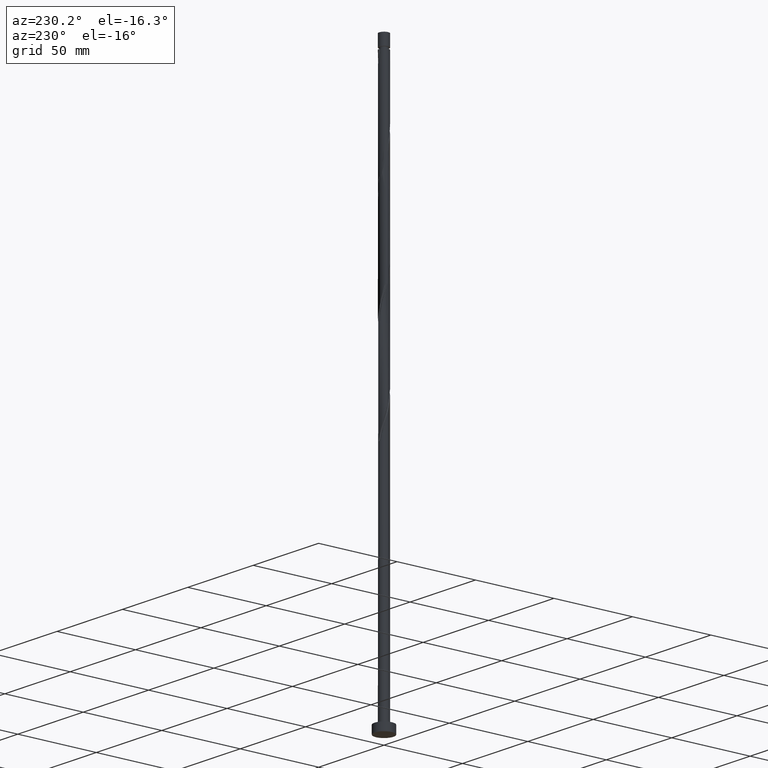
[diagram: clean part render]
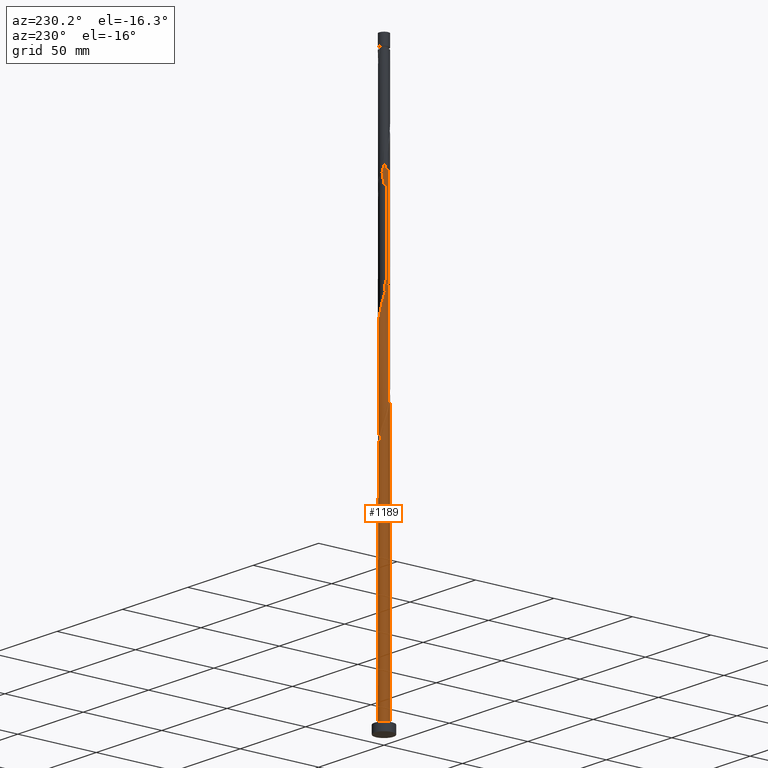
[diagram: same view with one face highlighted and labeled with its STEP entity id]
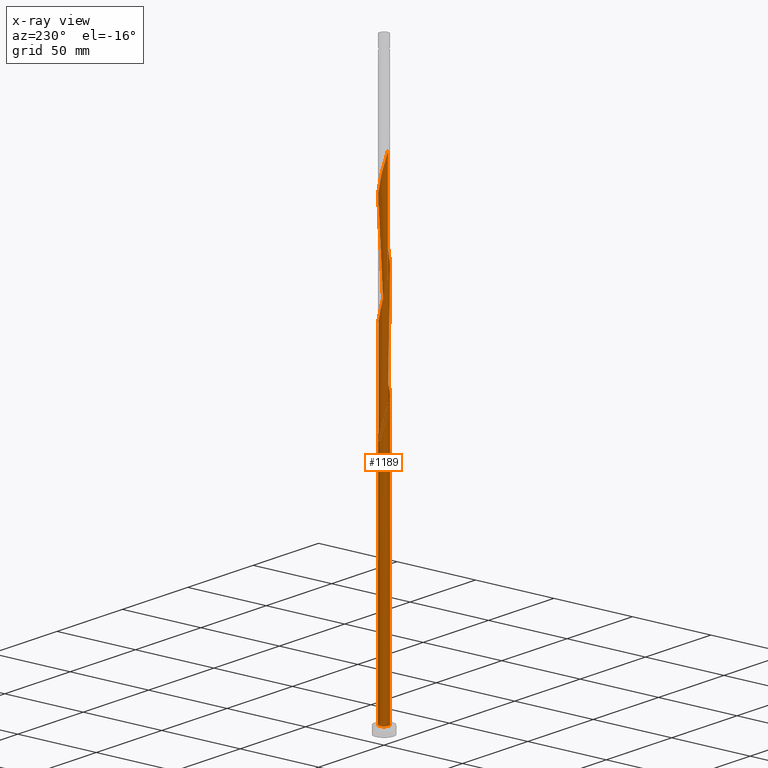
[diagram: x-ray of the same camera — body ghosted, the highlighted face saturated]
A machine part, auxiliary view. The second image highlights one B-rep face of the part: STEP entity #1189.
The next image is the same camera in x-ray: the body ghosted, the highlighted face saturated — about 0% of this face is hidden behind the body in this view.
In plain terms, the highlighted cylindrical surface (bore or boss wall) has radius 3 mm, axis along (-0, -0, -1).
Its self-contained STEP definition (entity closure, byte-faithful):
#17 = CARTESIAN_POINT ( 'NONE',  ( -1.245111594254574738, -2.729413328510883918, 175.9047530205320982 ) ) ;
#31 = CARTESIAN_POINT ( 'NONE',  ( 2.986297077045554360, 0.2864083930844358306, 198.1269752427542699 ) ) ;
#66 = CARTESIAN_POINT ( 'NONE',  ( -0.9059989139450631557, 2.877253563794377023, 217.0158641316432124 ) ) ;
#70 = CARTESIAN_POINT ( 'NONE',  ( -2.944774136347772409, 0.6540087066196524912, 161.4603085760876411 ) ) ;
#73 = CARTESIAN_POINT ( 'NONE',  ( -1.195207115623886818, 2.751632233922633564, 151.4603085760876979 ) ) ;
#84 = CARTESIAN_POINT ( 'NONE',  ( 0.02731362638454194400, 2.999875658392153976, 213.6825307983098696 ) ) ;
#87 = CARTESIAN_POINT ( 'NONE',  ( -2.456461689585820896, 1.750776419202127121, 161.4603085760876979 ) ) ;
#91 = CARTESIAN_POINT ( 'NONE',  ( -3.000000000000005329, -2.212365482258404366E-15, 163.7793097770106385 ) ) ;
#93 = CARTESIAN_POINT ( 'NONE',  ( -3.000000000000000888, 3.602568116380264432E-15, 168.0301962640535862 ) ) ;
#98 = CARTESIAN_POINT ( 'NONE',  ( 2.844610918258240417, -0.9529893618115796716, 260.3491974649765552 ) ) ;
#101 = CARTESIAN_POINT ( 'NONE',  ( -2.861491667719898047, 0.9010357570982411302, 164.7936419094209839 ) ) ;
#105 = CARTESIAN_POINT ( 'NONE',  ( 1.997955648279248875, -2.259998966802002851, 254.7936419094209555 ) ) ;
#116 = CARTESIAN_POINT ( 'NONE',  ( 0.000000000000000000, 0.000000000000000000, 5.000000000000000000 ) ) ;
#165 = CARTESIAN_POINT ( 'NONE',  ( -2.861491667719903820, -0.9010357570982413522, 167.0158641316432124 ) ) ;
#183 = CARTESIAN_POINT ( 'NONE',  ( -0.6504259784947300504, -2.928642355512056206, 178.1269752427543267 ) ) ;
#189 = CARTESIAN_POINT ( 'NONE',  ( -1.741185482790979844, 2.443004935426446700, 153.6825307983098696 ) ) ;
#192 = CARTESIAN_POINT ( 'NONE',  ( -2.211065689225173436, 2.027606598413814520, 222.5714196871987838 ) ) ;
#204 = CARTESIAN_POINT ( 'NONE',  ( 0.9582386936374949205, 2.860279830445437543, 210.3491974649765552 ) ) ;
#211 = ORIENTED_EDGE ( 'NONE', *, *, #1018, .T. ) ;
#215 = CARTESIAN_POINT ( 'NONE',  ( -2.247618455994267350, -1.987010638188426048, 238.1269752427543551 ) ) ;
#222 = CARTESIAN_POINT ( 'NONE',  ( -3.000000000000000444, 0.000000000000000000, 5.000000000000000000 ) ) ;
#236 = AXIS2_PLACEMENT_3D ( 'NONE', #1279, #549, #1655 ) ;
#237 = CARTESIAN_POINT ( 'NONE',  ( -1.531984494871655667, -2.598546826576330293, 241.4603085760876127 ) ) ;
#240 = CARTESIAN_POINT ( 'NONE',  ( 0.000000000000000000, 0.000000000000000000, 149.2380863538654410 ) ) ;
#241 = EDGE_CURVE ( 'NONE', #1623, #462, #662, .T. ) ;
#246 = CARTESIAN_POINT ( 'NONE',  ( -2.744447700168709314, 1.251970017003504632, 292.5714196871987838 ) ) ;
#252 = EDGE_CURVE ( 'NONE', #427, #785, #1699, .T. ) ;
#256 = CARTESIAN_POINT ( 'NONE',  ( -2.424175730171096443, 1.795214230025627300, 290.3491974649765552 ) ) ;
#268 = CARTESIAN_POINT ( 'NONE',  ( -3.000000000000004885, 0.1709212123392973570, 296.5070518009593457 ) ) ;
#279 = CARTESIAN_POINT ( 'NONE',  ( 2.247618455994268238, 1.987010638188425382, 271.4603085760876979 ) ) ;
#280 = EDGE_LOOP ( 'NONE', ( #1063, #656, #911, #211, #1825, #712, #1601, #640, #424 ) ) ;
#287 = CARTESIAN_POINT ( 'NONE',  ( 2.986297077045554360, 0.2864083930844358306, 264.7936419094210123 ) ) ;
#296 = AXIS2_PLACEMENT_3D ( 'NONE', #721, #1858, #862 ) ;
#302 = LINE ( 'NONE', #1738, #759 ) ;
#309 = CARTESIAN_POINT ( 'NONE',  ( -2.986297077045553916, -0.2864083930844374959, 164.7936419094210123 ) ) ;
#319 = CARTESIAN_POINT ( 'NONE',  ( 1.484415317302710147, -2.626010904050890105, 185.9047530205320697 ) ) ;
#325 = CARTESIAN_POINT ( 'NONE',  ( 2.766788993523063400, 1.201790650553044681, 201.4603085760876127 ) ) ;
#336 = CARTESIAN_POINT ( 'NONE',  ( -3.000000000000005329, -2.212365482258403972E-15, 163.7793097770106385 ) ) ;
#337 = CARTESIAN_POINT ( 'NONE',  ( -2.956194341916742463, -0.6002808636434358025, 165.9047530205320129 ) ) ;
#362 = CARTESIAN_POINT ( 'NONE',  ( -2.944774136347772409, 0.6540087066196524912, 228.1269752427543267 ) ) ;
#373 = CARTESIAN_POINT ( 'NONE',  ( -2.247618455994262909, 1.987010638188424494, 160.3491974649765268 ) ) ;
#387 = CARTESIAN_POINT ( 'NONE',  ( -1.741185482790979844, 2.443004935426446700, 287.0158641316432409 ) ) ;
#391 = DIRECTION ( 'NONE',  ( 0.000000000000000000, -0.000000000000000000, -1.000000000000000000 ) ) ;
#396 = CARTESIAN_POINT ( 'NONE',  ( 1.195207115623885930, -2.751632233922634008, 251.4603085760876411 ) ) ;
#399 = CARTESIAN_POINT ( 'NONE',  ( -1.531984494871652558, 2.598546826576327184, 157.0158641316432693 ) ) ;
#404 = CARTESIAN_POINT ( 'NONE',  ( 1.531984494871657887, 2.598546826576328517, 274.7936419094209555 ) ) ;
#415 = CARTESIAN_POINT ( 'NONE',  ( 2.956194341916742463, 0.6002808636434353584, 265.9047530205320982 ) ) ;
#421 = DIRECTION ( 'NONE',  ( -0.000000000000000000, -0.000000000000000000, -1.000000000000000000 ) ) ;
#424 = ORIENTED_EDGE ( 'NONE', *, *, #1800, .F. ) ;
#427 = VERTEX_POINT ( 'NONE', #1003 ) ;
#436 = CARTESIAN_POINT ( 'NONE',  ( 2.424175730171095999, -1.795214230025627966, 190.3491974649766121 ) ) ;
#456 = CARTESIAN_POINT ( 'NONE',  ( 0.9059989139450623785, -2.877253563794377911, 183.6825307983098412 ) ) ;
#462 = VERTEX_POINT ( 'NONE', #1125 ) ;
#464 = CARTESIAN_POINT ( 'NONE',  ( -2.456461689585825336, -1.750776419202128675, 170.3491974649765837 ) ) ;
#471 = CARTESIAN_POINT ( 'NONE',  ( -2.424175730171096443, 1.795214230025627300, 157.0158641316431840 ) ) ;
#475 = CARTESIAN_POINT ( 'NONE',  ( -2.766788993523062512, -1.201790650553046236, 168.1269752427543267 ) ) ;
#483 = CARTESIAN_POINT ( 'NONE',  ( -2.584311715169903767, 1.523592123514565522, 158.1269752427543551 ) ) ;
#494 = CARTESIAN_POINT ( 'NONE',  ( -2.844610918258240417, 0.9529893618115783394, 227.0158641316432124 ) ) ;
#508 = VECTOR ( 'NONE', #1430, 1000.000000000000000 ) ;
#513 = CARTESIAN_POINT ( 'NONE',  ( -1.484415317302710147, 2.626010904050890105, 152.5714196871987554 ) ) ;
#518 = CARTESIAN_POINT ( 'NONE',  ( 2.038775222402709364, 2.223244857174723865, 205.9047530205321266 ) ) ;
#527 = CARTESIAN_POINT ( 'NONE',  ( -0.9582386936374943653, -2.860279830445437987, 243.6825307983098696 ) ) ;
#529 =( BOUNDED_CURVE ( )  B_SPLINE_CURVE ( 2, ( #93, #1848, #664, #828, #101, #962, #1691, #87, #373, #551, #673, #399, #1553, #1255, #531, #1840, #1120, #1544, #560 ),
 .UNSPECIFIED., .F., .T. ) 
 B_SPLINE_CURVE_WITH_KNOTS ( ( 3, 2, 2, 2, 2, 2, 2, 2, 2, 3 ),
 ( 0.9295286012773116280, 0.9333333333333333481, 0.9416666666666666519, 0.9499999999999999556, 0.9583333333333333703, 0.9666666666666666741, 0.9749999999999999778, 0.9833333333333332815, 0.9916666666666666963, 1.000000000000000000 ),
 .UNSPECIFIED. ) 
 CURVE ( )  GEOMETRIC_REPRESENTATION_ITEM ( )  RATIONAL_B_SPLINE_CURVE ( ( 0.9066196499552394705, 0.9068171577856523058, 0.9090909090909511381, 0.9041108139711994118, 0.9090909090909511381, 0.9041108139711994118, 0.9090909090909511381, 0.9041108139711994118, 0.9090909090909511381, 0.9041108139711994118, 0.9090909090909511381, 0.9041108139711994118, 0.9090909090909511381, 0.9041108139711994118, 0.9090909090909511381, 0.9041108139711994118, 0.9090909090909511381, 0.9041108139711994118, 0.9090909090909511381 ) ) 
 REPRESENTATION_ITEM ( '' )  );
#531 = CARTESIAN_POINT ( 'NONE',  ( -0.6504259784947276080, 2.928642355512051765, 153.6825307983098696 ) ) ;
#536 = CARTESIAN_POINT ( 'NONE',  ( -1.195207115623886818, 2.751632233922633564, 284.7936419094210123 ) ) ;
#537 = CARTESIAN_POINT ( 'NONE',  ( -3.000000000000006217, 0.1709212123392934990, 163.1737184676260597 ) ) ;
#548 = CARTESIAN_POINT ( 'NONE',  ( 2.456461689585826225, 1.750776419202127343, 270.3491974649764984 ) ) ;
#549 = DIRECTION ( 'NONE',  ( -0.000000000000000000, -0.000000000000000000, -1.000000000000000000 ) ) ;
#551 = CARTESIAN_POINT ( 'NONE',  ( -2.038775222402705367, 2.223244857174722089, 159.2380863538654410 ) ) ;
#558 = CARTESIAN_POINT ( 'NONE',  ( 1.484415317302710147, -2.626010904050890105, 252.5714196871987554 ) ) ;
#560 = CARTESIAN_POINT ( 'NONE',  ( 0.5969924622639742884, 2.940000000000000391, 149.2380863538654410 ) ) ;
#577 = CARTESIAN_POINT ( 'NONE',  ( 0.6504259784947317158, 2.928642355512055762, 278.1269752427543835 ) ) ;
#595 = CARTESIAN_POINT ( 'NONE',  ( -2.038775222402708920, -2.223244857174723865, 172.5714196871987838 ) ) ;
#603 = CARTESIAN_POINT ( 'NONE',  ( 1.195207115623885930, -2.751632233922634008, 184.7936419094209555 ) ) ;
#617 = CARTESIAN_POINT ( 'NONE',  ( -0.02731362638454152419, -2.999875658392153532, 180.3491974649765552 ) ) ;
#640 = ORIENTED_EDGE ( 'NONE', *, *, #1864, .T. ) ;
#647 = CARTESIAN_POINT ( 'NONE',  ( -1.195207115623886818, 2.751632233922633564, 218.1269752427543267 ) ) ;
#656 = ORIENTED_EDGE ( 'NONE', *, *, #241, .F. ) ;
#659 = CARTESIAN_POINT ( 'NONE',  ( 1.245111594254575182, 2.729413328510883918, 209.2380863538654410 ) ) ;
#662 =( BOUNDED_CURVE ( )  B_SPLINE_CURVE ( 2, ( #749, #1184, #309, #337, #165, #475, #1174, #464, #1318, #595, #919, #768, #17, #1503, #183, #1476, #617, #1326, #1206, #456, #603, #319, #1640, #1764, #1487, #436, #758, #1030, #1785, #1193, #1334, #1056, #31, #1773, #1631, #325, #778, #1604, #1376, #518, #1512, #1539, #659, #204, #1218, #950, #84, #816, #1678, #66, #647, #670, #1091, #929, #192, #1798, #1082, #1667, #494, #362, #939, #968, #1837, #789, #1530, #1395, #1365, #1227, #215, #1657, #807, #237, #1385, #527, #1687, #825, #1708, #1424, #1270, #1594, #396, #558, #1568, #105, #1127, #1733, #998, #1299, #98, #1288, #1118, #688, #287, #415, #841, #1409, #679, #548, #279, #989, #715, #404, #1884, #1135, #577, #1698, #697, #1262, #833, #1846, #536, #1433, #387, #1874, #1278, #256, #1863, #246, #979, #1559, #1577, #268, #854 ),
 .UNSPECIFIED., .F., .T. ) 
 B_SPLINE_CURVE_WITH_KNOTS ( ( 3, 2, 2, 2, 2, 2, 2, 2, 2, 2, 2, 2, 2, 2, 2, 2, 2, 2, 2, 2, 2, 2, 2, 2, 2, 2, 2, 2, 2, 2, 2, 2, 2, 2, 2, 2, 2, 2, 2, 2, 2, 2, 2, 2, 2, 2, 2, 2, 2, 2, 2, 2, 2, 2, 2, 2, 2, 2, 2, 2, 2, 3 ),
 ( 0.05452860127731162104, 0.05833333333333334814, 0.06666666666666665186, 0.07499999999999995559, 0.08333333333333337034, 0.09166666666666667407, 0.09999999999999997780, 0.1083333333333332815, 0.1166666666666666963, 0.1250000000000000000, 0.1333333333333333037, 0.1416666666666667185, 0.1500000000000000222, 0.1583333333333333259, 0.1666666666666666297, 0.1750000000000000444, 0.1833333333333333481, 0.1916666666666666519, 0.1999999999999999556, 0.2083333333333333703, 0.2166666666666666741, 0.2249999999999999778, 0.2333333333333332815, 0.2416666666666666963, 0.2500000000000000000, 0.2583333333333333037, 0.2666666666666667185, 0.2750000000000000222, 0.2833333333333333259, 0.2916666666666666297, 0.3000000000000000444, 0.3083333333333333481, 0.3166666666666666519, 0.3249999999999999556, 0.3333333333333333703, 0.3416666666666666741, 0.3499999999999999778, 0.3583333333333332815, 0.3666666666666666963, 0.3750000000000000000, 0.3833333333333333037, 0.3916666666666667185, 0.4000000000000000222, 0.4083333333333333259, 0.4166666666666666297, 0.4250000000000000444, 0.4333333333333333481, 0.4416666666666666519, 0.4499999999999999556, 0.4583333333333333703, 0.4666666666666666741, 0.4749999999999999778, 0.4833333333333332815, 0.4916666666666666963, 0.5000000000000000000, 0.5083333333333333037, 0.5166666666666666075, 0.5250000000000000222, 0.5333333333333333259, 0.5416666666666667407, 0.5500000000000000444, 0.5545286012773115170 ),
 .UNSPECIFIED. ) 
 CURVE ( )  GEOMETRIC_REPRESENTATION_ITEM ( )  RATIONAL_B_SPLINE_CURVE ( ( 0.9066196499552459098, 0.9068171577856587451, 0.9090909090909575774, 0.9041108139712058511, 0.9090909090909575774, 0.9041108139712058511, 0.9090909090909575774, 0.9041108139712058511, 0.9090909090909575774, 0.9041108139712058511, 0.9090909090909575774, 0.9041108139712058511, 0.9090909090909575774, 0.9041108139712058511, 0.9090909090909575774, 0.9041108139712058511, 0.9090909090909575774, 0.9041108139712058511, 0.9090909090909575774, 0.9041108139712058511, 0.9090909090909575774, 0.9041108139712058511, 0.9090909090909575774, 0.9041108139712058511, 0.9090909090909575774, 0.9041108139712058511, 0.9090909090909575774, 0.9041108139712058511, 0.9090909090909575774, 0.9041108139712058511, 0.9090909090909575774, 0.9041108139712058511, 0.9090909090909575774, 0.9041108139712058511, 0.9090909090909575774, 0.9041108139712058511, 0.9090909090909575774, 0.9041108139712058511, 0.9090909090909575774, 0.9041108139712058511, 0.9090909090909575774, 0.9041108139712058511, 0.9090909090909575774, 0.9041108139712058511, 0.9090909090909575774, 0.9041108139712058511, 0.9090909090909575774, 0.9041108139712058511, 0.9090909090909575774, 0.9041108139712058511, 0.9090909090909575774, 0.9041108139712058511, 0.9090909090909575774, 0.9041108139712058511, 0.9090909090909575774, 0.9041108139712058511, 0.9090909090909575774, 0.9041108139712058511, 0.9090909090909575774, 0.9041108139712058511, 0.9090909090909575774, 0.9041108139712058511, 0.9090909090909575774, 0.9041108139712058511, 0.9090909090909575774, 0.9041108139712058511, 0.9090909090909575774, 0.9041108139712058511, 0.9090909090909575774, 0.9041108139712058511, 0.9090909090909575774, 0.9041108139712058511, 0.9090909090909575774, 0.9041108139712058511, 0.9090909090909575774, 0.9041108139712058511, 0.9090909090909575774, 0.9041108139712058511, 0.9090909090909575774, 0.9041108139712058511, 0.9090909090909575774, 0.9041108139712058511, 0.9090909090909575774, 0.9041108139712058511, 0.9090909090909575774, 0.9041108139712058511, 0.9090909090909575774, 0.9041108139712058511, 0.9090909090909575774, 0.9041108139712058511, 0.9090909090909575774, 0.9041108139712058511, 0.9090909090909575774, 0.9041108139712058511, 0.9090909090909575774, 0.9041108139712058511, 0.9090909090909575774, 0.9041108139712058511, 0.9090909090909575774, 0.9041108139712058511, 0.9090909090909575774, 0.9041108139712058511, 0.9090909090909575774, 0.9041108139712058511, 0.9090909090909575774, 0.9041108139712058511, 0.9090909090909575774, 0.9041108139712058511, 0.9090909090909575774, 0.9041108139712058511, 0.9090909090909575774, 0.9041108139712058511, 0.9090909090909575774, 0.9041108139712058511, 0.9090909090909575774, 0.9041108139712058511, 0.9090909090909575774, 0.9041108139712058511, 0.9090909090909575774, 0.9041108139712058511, 0.9090909090909575774, 0.9063845652765047944, 0.9066196499552460208 ) ) 
 REPRESENTATION_ITEM ( '' )  );
#664 = CARTESIAN_POINT ( 'NONE',  ( -2.986297077045549475, 0.2864083930844386616, 167.0158641316432409 ) ) ;
#668 = CIRCLE ( 'NONE', #1122, 3.000000000000000444 ) ;
#670 = CARTESIAN_POINT ( 'NONE',  ( -1.484415317302710147, 2.626010904050890105, 219.2380863538654125 ) ) ;
#673 = CARTESIAN_POINT ( 'NONE',  ( -1.785379858637178740, 2.410895841875523526, 158.1269752427542699 ) ) ;
#679 = CARTESIAN_POINT ( 'NONE',  ( 2.611625341554444368, 1.476283534877587345, 269.2380863538654125 ) ) ;
#688 = CARTESIAN_POINT ( 'NONE',  ( 3.016399812174365813, -0.02746407747456110909, 263.6825307983098696 ) ) ;
#697 = CARTESIAN_POINT ( 'NONE',  ( 0.02731362638454194400, 2.999875658392153976, 280.3491974649765552 ) ) ;
#698 = EDGE_CURVE ( 'NONE', #462, #1777, #1108, .T. ) ;
#712 = ORIENTED_EDGE ( 'NONE', *, *, #1004, .F. ) ;
#715 = CARTESIAN_POINT ( 'NONE',  ( 1.785379858637183625, 2.410895841875526191, 273.6825307983098696 ) ) ;
#721 = CARTESIAN_POINT ( 'NONE',  ( 0.000000000000000000, 0.000000000000000000, 5.000000000000000000 ) ) ;
#749 = CARTESIAN_POINT ( 'NONE',  ( -3.000000000000005329, -2.212365482258404366E-15, 163.7793097770106385 ) ) ;
#758 = CARTESIAN_POINT ( 'NONE',  ( 2.584311715169902879, -1.523592123514566632, 191.4603085760876979 ) ) ;
#759 = VECTOR ( 'NONE', #421, 1000.000000000000000 ) ;
#768 = CARTESIAN_POINT ( 'NONE',  ( -1.531984494871655667, -2.598546826576330293, 174.7936419094209555 ) ) ;
#778 = CARTESIAN_POINT ( 'NONE',  ( 2.611625341554444368, 1.476283534877587345, 202.5714196871987554 ) ) ;
#785 = VERTEX_POINT ( 'NONE', #222 ) ;
#789 = CARTESIAN_POINT ( 'NONE',  ( -2.956194341916742463, -0.6002808636434358025, 232.5714196871987838 ) ) ;
#807 = CARTESIAN_POINT ( 'NONE',  ( -1.785379858637183181, -2.410895841875526635, 240.3491974649765268 ) ) ;
#813 = CARTESIAN_POINT ( 'NONE',  ( -1.997955648279249763, 2.259998966802002407, 154.7936419094209839 ) ) ;
#816 = CARTESIAN_POINT ( 'NONE',  ( -0.2879860105828822570, 3.002746436205633529, 214.7936419094209839 ) ) ;
#818 = EDGE_CURVE ( 'NONE', #1894, #1623, #846, .T. ) ;
#825 = CARTESIAN_POINT ( 'NONE',  ( -0.3426132633519656800, -2.997004880578673980, 245.9047530205320697 ) ) ;
#828 = CARTESIAN_POINT ( 'NONE',  ( -2.956194341916738466, 0.6002808636434358025, 165.9047530205321266 ) ) ;
#833 = CARTESIAN_POINT ( 'NONE',  ( -0.5969924622639734002, 2.940000000000005720, 282.5714196871986701 ) ) ;
#841 = CARTESIAN_POINT ( 'NONE',  ( 2.861491667719903820, 0.9010357570982401310, 267.0158641316432409 ) ) ;
#846 =( BOUNDED_CURVE ( )  B_SPLINE_CURVE ( 2, ( #947, #1794, #73, #513, #189, #813, #1203, #471, #483, #925, #1361, #70, #1396, #537, #91 ),
 .UNSPECIFIED., .F., .T. ) 
 B_SPLINE_CURVE_WITH_KNOTS ( ( 3, 2, 2, 2, 2, 2, 2, 3 ),
 ( 0.000000000000000000, 0.008333333333333303727, 0.01666666666666671848, 0.02500000000000002220, 0.03333333333333332593, 0.04166666666666662966, 0.05000000000000004441, 0.05452860127731162104 ),
 .UNSPECIFIED. ) 
 CURVE ( )  GEOMETRIC_REPRESENTATION_ITEM ( )  RATIONAL_B_SPLINE_CURVE ( ( 0.9090909090909575774, 0.9041108139712058511, 0.9090909090909575774, 0.9041108139712058511, 0.9090909090909575774, 0.9041108139712058511, 0.9090909090909575774, 0.9041108139712058511, 0.9090909090909575774, 0.9041108139712058511, 0.9090909090909575774, 0.9041108139712058511, 0.9090909090909575774, 0.9063845652765045724, 0.9066196499552459098 ) ) 
 REPRESENTATION_ITEM ( '' )  );
#850 = CARTESIAN_POINT ( 'NONE',  ( -3.000000000000000444, 0.000000000000000000, 357.7000000000000455 ) ) ;
#854 = CARTESIAN_POINT ( 'NONE',  ( -3.000000000000005329, 5.979366168265956448E-17, 297.1126431103439245 ) ) ;
#862 = DIRECTION ( 'NONE',  ( 1.000000000000000000, 0.000000000000000000, 0.000000000000000000 ) ) ;
#911 = ORIENTED_EDGE ( 'NONE', *, *, #1004, .T. ) ;
#919 = CARTESIAN_POINT ( 'NONE',  ( -1.785379858637183181, -2.410895841875526635, 173.6825307983098980 ) ) ;
#925 = CARTESIAN_POINT ( 'NONE',  ( -2.744447700168709314, 1.251970017003504632, 159.2380863538653841 ) ) ;
#928 = CARTESIAN_POINT ( 'NONE',  ( 0.5969924622639743994, 2.940000000000000391, 149.2380863538654410 ) ) ;
#929 = CARTESIAN_POINT ( 'NONE',  ( -1.997955648279249763, 2.259998966802002407, 221.4603085760876979 ) ) ;
#939 = CARTESIAN_POINT ( 'NONE',  ( -2.980586974261068445, 0.3407363920471058183, 229.2380863538654410 ) ) ;
#947 = CARTESIAN_POINT ( 'NONE',  ( -0.5969924622639734002, 2.940000000000005720, 149.2380863538654410 ) ) ;
#950 = CARTESIAN_POINT ( 'NONE',  ( 0.3426132633519660686, 2.997004880578673980, 212.5714196871988122 ) ) ;
#962 = CARTESIAN_POINT ( 'NONE',  ( -2.766788993523058071, 1.201790650553046014, 163.6825307983098696 ) ) ;
#968 = CARTESIAN_POINT ( 'NONE',  ( -3.016399812174365369, 0.02746407747456014459, 230.3491974649765837 ) ) ;
#979 = CARTESIAN_POINT ( 'NONE',  ( -2.844610918258240417, 0.9529893618115783394, 293.6825307983098696 ) ) ;
#989 = CARTESIAN_POINT ( 'NONE',  ( 2.038775222402709364, 2.223244857174723865, 272.5714196871987269 ) ) ;
#998 = CARTESIAN_POINT ( 'NONE',  ( 2.584311715169902879, -1.523592123514566632, 258.1269752427542699 ) ) ;
#1003 = CARTESIAN_POINT ( 'NONE',  ( 3.000000000000000444, 0.000000000000000000, 5.000000000000000000 ) ) ;
#1004 = EDGE_CURVE ( 'NONE', #1623, #785, #302, .T. ) ;
#1005 = AXIS2_PLACEMENT_3D ( 'NONE', #116, #1144, #1723 ) ;
#1018 = EDGE_CURVE ( 'NONE', #785, #427, #1887, .T. ) ;
#1030 = CARTESIAN_POINT ( 'NONE',  ( 2.744447700168709314, -1.251970017003504632, 192.5714196871987554 ) ) ;
#1056 = CARTESIAN_POINT ( 'NONE',  ( 3.016399812174365813, -0.02746407747456110909, 197.0158641316431840 ) ) ;
#1063 = ORIENTED_EDGE ( 'NONE', *, *, #698, .F. ) ;
#1082 = CARTESIAN_POINT ( 'NONE',  ( -2.584311715169903767, 1.523592123514565522, 224.7936419094209839 ) ) ;
#1091 = CARTESIAN_POINT ( 'NONE',  ( -1.741185482790979844, 2.443004935426446700, 220.3491974649765268 ) ) ;
#1108 = LINE ( 'NONE', #850, #508 ) ;
#1118 = CARTESIAN_POINT ( 'NONE',  ( 2.980586974261068445, -0.3407363920471063179, 262.5714196871987838 ) ) ;
#1120 = CARTESIAN_POINT ( 'NONE',  ( -0.02731362638453963335, 2.999875658392149536, 151.4603085760876979 ) ) ;
#1122 = AXIS2_PLACEMENT_3D ( 'NONE', #240, #391, #1129 ) ;
#1125 = CARTESIAN_POINT ( 'NONE',  ( -3.000000000000005329, 5.979366168265956448E-17, 297.1126431103439245 ) ) ;
#1127 = CARTESIAN_POINT ( 'NONE',  ( 2.211065689225173436, -2.027606598413814520, 255.9047530205321834 ) ) ;
#1129 = DIRECTION ( 'NONE',  ( -1.000000000000000000, 0.000000000000000000, 0.000000000000000000 ) ) ;
#1135 = CARTESIAN_POINT ( 'NONE',  ( 0.9582386936374949205, 2.860279830445437543, 277.0158641316431840 ) ) ;
#1144 = DIRECTION ( 'NONE',  ( 0.000000000000000000, 0.000000000000000000, 1.000000000000000000 ) ) ;
#1174 = CARTESIAN_POINT ( 'NONE',  ( -2.611625341554444368, -1.476283534877587789, 169.2380863538654125 ) ) ;
#1184 = CARTESIAN_POINT ( 'NONE',  ( -3.000000000000005329, -0.1435319978602533353, 164.2878583025746764 ) ) ;
#1189 = ADVANCED_FACE ( 'NONE', ( #1855 ), #1436, .T. ) ;
#1193 = CARTESIAN_POINT ( 'NONE',  ( 2.944774136347771076, -0.6540087066196543786, 194.7936419094209839 ) ) ;
#1203 = CARTESIAN_POINT ( 'NONE',  ( -2.211065689225173436, 2.027606598413814520, 155.9047530205321266 ) ) ;
#1206 = CARTESIAN_POINT ( 'NONE',  ( 0.5969924622639737333, -2.940000000000005720, 182.5714196871987554 ) ) ;
#1218 = CARTESIAN_POINT ( 'NONE',  ( 0.6504259784947317158, 2.928642355512055762, 211.4603085760876695 ) ) ;
#1227 = CARTESIAN_POINT ( 'NONE',  ( -2.456461689585825336, -1.750776419202128675, 237.0158641316431840 ) ) ;
#1255 = CARTESIAN_POINT ( 'NONE',  ( -0.9582386936374912567, 2.860279830445434435, 154.7936419094209555 ) ) ;
#1262 = CARTESIAN_POINT ( 'NONE',  ( -0.2879860105828822570, 3.002746436205633529, 281.4603085760875842 ) ) ;
#1270 = CARTESIAN_POINT ( 'NONE',  ( 0.5969924622639737333, -2.940000000000005720, 249.2380863538654125 ) ) ;
#1278 = CARTESIAN_POINT ( 'NONE',  ( -2.211065689225173436, 2.027606598413814520, 289.2380863538654125 ) ) ;
#1279 = CARTESIAN_POINT ( 'NONE',  ( 0.000000000000000000, 0.000000000000000000, 357.7000000000000455 ) ) ;
#1288 = CARTESIAN_POINT ( 'NONE',  ( 2.944774136347771076, -0.6540087066196543786, 261.4603085760876411 ) ) ;
#1299 = CARTESIAN_POINT ( 'NONE',  ( 2.744447700168709314, -1.251970017003504632, 259.2380863538654694 ) ) ;
#1318 = CARTESIAN_POINT ( 'NONE',  ( -2.247618455994267350, -1.987010638188426048, 171.4603085760876979 ) ) ;
#1325 = VERTEX_POINT ( 'NONE', #928 ) ;
#1326 = CARTESIAN_POINT ( 'NONE',  ( 0.2879860105828839223, -3.002746436205632641, 181.4603085760876127 ) ) ;
#1334 = CARTESIAN_POINT ( 'NONE',  ( 2.980586974261068445, -0.3407363920471063179, 195.9047530205321266 ) ) ;
#1361 = CARTESIAN_POINT ( 'NONE',  ( -2.844610918258240417, 0.9529893618115783394, 160.3491974649764984 ) ) ;
#1365 = CARTESIAN_POINT ( 'NONE',  ( -2.611625341554444368, -1.476283534877587789, 235.9047530205320697 ) ) ;
#1376 = CARTESIAN_POINT ( 'NONE',  ( 2.247618455994268238, 1.987010638188425382, 204.7936419094210407 ) ) ;
#1385 = CARTESIAN_POINT ( 'NONE',  ( -1.245111594254574738, -2.729413328510883918, 242.5714196871988122 ) ) ;
#1388 = CARTESIAN_POINT ( 'NONE',  ( -0.5969924622639734002, 2.940000000000005720, 149.2380863538654410 ) ) ;
#1395 = CARTESIAN_POINT ( 'NONE',  ( -2.766788993523062512, -1.201790650553046236, 234.7936419094209555 ) ) ;
#1396 = CARTESIAN_POINT ( 'NONE',  ( -2.980586974261068445, 0.3407363920471058183, 162.5714196871987554 ) ) ;
#1409 = CARTESIAN_POINT ( 'NONE',  ( 2.766788993523063400, 1.201790650553044681, 268.1269752427543267 ) ) ;
#1424 = CARTESIAN_POINT ( 'NONE',  ( 0.2879860105828839223, -3.002746436205632641, 248.1269752427542983 ) ) ;
#1430 = DIRECTION ( 'NONE',  ( -0.000000000000000000, -0.000000000000000000, -1.000000000000000000 ) ) ;
#1433 = CARTESIAN_POINT ( 'NONE',  ( -1.484415317302710147, 2.626010904050890105, 285.9047530205320982 ) ) ;
#1436 = CYLINDRICAL_SURFACE ( 'NONE', #236, 3.000000000000000444 ) ;
#1476 = CARTESIAN_POINT ( 'NONE',  ( -0.3426132633519656800, -2.997004880578673980, 179.2380863538654410 ) ) ;
#1487 = CARTESIAN_POINT ( 'NONE',  ( 2.211065689225173436, -2.027606598413814520, 189.2380863538654125 ) ) ;
#1503 = CARTESIAN_POINT ( 'NONE',  ( -0.9582386936374943653, -2.860279830445437987, 177.0158641316432124 ) ) ;
#1512 = CARTESIAN_POINT ( 'NONE',  ( 1.785379858637183625, 2.410895841875526191, 207.0158641316432409 ) ) ;
#1530 = CARTESIAN_POINT ( 'NONE',  ( -2.861491667719903820, -0.9010357570982413522, 233.6825307983098696 ) ) ;
#1539 = CARTESIAN_POINT ( 'NONE',  ( 1.531984494871657887, 2.598546826576328517, 208.1269752427542699 ) ) ;
#1544 = CARTESIAN_POINT ( 'NONE',  ( 0.2879860105828847550, 3.002746436205628200, 150.3491974649765837 ) ) ;
#1553 = CARTESIAN_POINT ( 'NONE',  ( -1.245111594254571630, 2.729413328510879921, 155.9047530205320697 ) ) ;
#1559 = CARTESIAN_POINT ( 'NONE',  ( -2.944774136347772409, 0.6540087066196524912, 294.7936419094208986 ) ) ;
#1568 = CARTESIAN_POINT ( 'NONE',  ( 1.741185482790979178, -2.443004935426447144, 253.6825307983098128 ) ) ;
#1577 = CARTESIAN_POINT ( 'NONE',  ( -2.980586974261068445, 0.3407363920471058183, 295.9047530205320982 ) ) ;
#1594 = CARTESIAN_POINT ( 'NONE',  ( 0.9059989139450623785, -2.877253563794377911, 250.3491974649765268 ) ) ;
#1601 = ORIENTED_EDGE ( 'NONE', *, *, #818, .F. ) ;
#1604 = CARTESIAN_POINT ( 'NONE',  ( 2.456461689585826225, 1.750776419202127343, 203.6825307983098128 ) ) ;
#1623 = VERTEX_POINT ( 'NONE', #336 ) ;
#1631 = CARTESIAN_POINT ( 'NONE',  ( 2.861491667719903820, 0.9010357570982401310, 200.3491974649765552 ) ) ;
#1640 = CARTESIAN_POINT ( 'NONE',  ( 1.741185482790979178, -2.443004935426447144, 187.0158641316432693 ) ) ;
#1655 = DIRECTION ( 'NONE',  ( -1.000000000000000000, 0.000000000000000000, 0.000000000000000000 ) ) ;
#1657 = CARTESIAN_POINT ( 'NONE',  ( -2.038775222402708920, -2.223244857174723865, 239.2380863538654125 ) ) ;
#1667 = CARTESIAN_POINT ( 'NONE',  ( -2.744447700168709314, 1.251970017003504632, 225.9047530205320413 ) ) ;
#1678 = CARTESIAN_POINT ( 'NONE',  ( -0.5969924622639734002, 2.940000000000005720, 215.9047530205321550 ) ) ;
#1687 = CARTESIAN_POINT ( 'NONE',  ( -0.6504259784947300504, -2.928642355512056206, 244.7936419094209839 ) ) ;
#1691 = CARTESIAN_POINT ( 'NONE',  ( -2.611625341554439483, 1.476283534877586678, 162.5714196871987554 ) ) ;
#1698 = CARTESIAN_POINT ( 'NONE',  ( 0.3426132633519660686, 2.997004880578673980, 279.2380863538654694 ) ) ;
#1699 = CIRCLE ( 'NONE', #1005, 3.000000000000000444 ) ;
#1708 = CARTESIAN_POINT ( 'NONE',  ( -0.02731362638454152419, -2.999875658392153532, 247.0158641316432124 ) ) ;
#1723 = DIRECTION ( 'NONE',  ( 1.000000000000000000, 0.000000000000000000, 0.000000000000000000 ) ) ;
#1733 = CARTESIAN_POINT ( 'NONE',  ( 2.424175730171095999, -1.795214230025627966, 257.0158641316432409 ) ) ;
#1738 = CARTESIAN_POINT ( 'NONE',  ( -3.000000000000000444, 0.000000000000000000, 357.7000000000000455 ) ) ;
#1764 = CARTESIAN_POINT ( 'NONE',  ( 1.997955648279248875, -2.259998966802002851, 188.1269752427542699 ) ) ;
#1773 = CARTESIAN_POINT ( 'NONE',  ( 2.956194341916742463, 0.6002808636434353584, 199.2380863538654410 ) ) ;
#1777 = VERTEX_POINT ( 'NONE', #1832 ) ;
#1785 = CARTESIAN_POINT ( 'NONE',  ( 2.844610918258240417, -0.9529893618115796716, 193.6825307983098412 ) ) ;
#1794 = CARTESIAN_POINT ( 'NONE',  ( -0.9059989139450631557, 2.877253563794377023, 150.3491974649765552 ) ) ;
#1798 = CARTESIAN_POINT ( 'NONE',  ( -2.424175730171096443, 1.795214230025627300, 223.6825307983098696 ) ) ;
#1800 = EDGE_CURVE ( 'NONE', #1777, #1325, #529, .T. ) ;
#1825 = ORIENTED_EDGE ( 'NONE', *, *, #252, .T. ) ;
#1832 = CARTESIAN_POINT ( 'NONE',  ( -3.000000000000000888, 3.602568116380264432E-15, 168.0301962640535862 ) ) ;
#1837 = CARTESIAN_POINT ( 'NONE',  ( -2.986297077045553916, -0.2864083930844374959, 231.4603085760876695 ) ) ;
#1840 = CARTESIAN_POINT ( 'NONE',  ( -0.3426132633519644033, 2.997004880578669095, 152.5714196871988122 ) ) ;
#1846 = CARTESIAN_POINT ( 'NONE',  ( -0.9059989139450631557, 2.877253563794377023, 283.6825307983098128 ) ) ;
#1848 = CARTESIAN_POINT ( 'NONE',  ( -3.000000000000000444, 0.1435319978602549174, 167.5216477384895484 ) ) ;
#1855 = FACE_OUTER_BOUND ( 'NONE', #280, .T. ) ;
#1858 = DIRECTION ( 'NONE',  ( 0.000000000000000000, 0.000000000000000000, 1.000000000000000000 ) ) ;
#1863 = CARTESIAN_POINT ( 'NONE',  ( -2.584311715169903767, 1.523592123514565522, 291.4603085760876979 ) ) ;
#1864 = EDGE_CURVE ( 'NONE', #1894, #1325, #668, .T. ) ;
#1874 = CARTESIAN_POINT ( 'NONE',  ( -1.997955648279249763, 2.259998966802002407, 288.1269752427542699 ) ) ;
#1884 = CARTESIAN_POINT ( 'NONE',  ( 1.245111594254575182, 2.729413328510883918, 275.9047530205320982 ) ) ;
#1887 = CIRCLE ( 'NONE', #296, 3.000000000000000444 ) ;
#1894 = VERTEX_POINT ( 'NONE', #1388 ) ;